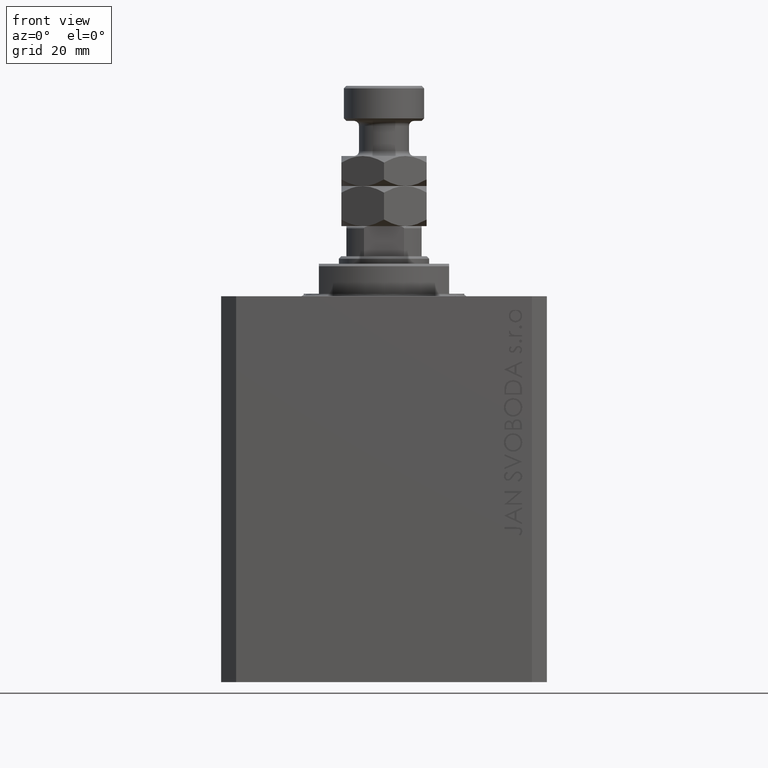
[diagram: clean part render]
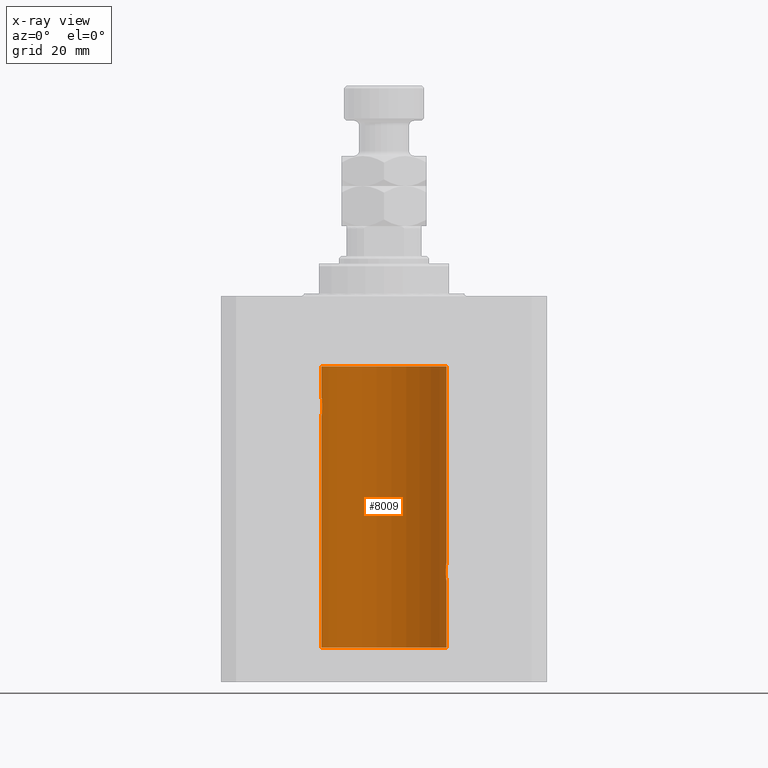
[diagram: x-ray — body ghosted, one internal face saturated and labeled with its STEP entity id]
A machine part, front view, then the same camera in x-ray: the body is ghosted and one INTERNAL B-rep face — a face not visible from any outside direction — is saturated and labeled: STEP entity #8009.
In plain terms, the highlighted cylindrical surface (partial cylindrical patch) has radius 12.5 mm, axis along (0, 0, 1).
Its self-contained STEP definition (entity closure, byte-faithful):
#68 = DIRECTION ( 'NONE',  ( 0.000000000000000000, 0.000000000000000000, 1.000000000000000000 ) ) ;
#218 = CARTESIAN_POINT ( 'NONE',  ( -12.34922241902463114, 1.935814255713574239, -22.51937350851555308 ) ) ;
#1283 = LINE ( 'NONE', #42526, #47000 ) ;
#1491 = DIRECTION ( 'NONE',  ( -0.000000000000000000, -0.000000000000000000, 1.000000000000000000 ) ) ;
#1696 = EDGE_CURVE ( 'NONE', #48586, #10156, #4246, .T. ) ;
#1958 = B_SPLINE_CURVE_WITH_KNOTS ( 'NONE', 3,
 ( #37038, #48152, #33816, #3193, #18979, #22696, #18255, #26158, #34059, #33085, #40735, #33324, #18505, #48879, #10598, #218, #7379, #41227, #14307, #6895, #10840, #21717, #48641, #11329, #21966, #45165, #48398, #25922, #15037, #44193 ),
 .UNSPECIFIED., .F., .F.,
 ( 4, 2, 2, 2, 2, 2, 2, 2, 2, 2, 2, 2, 2, 2, 4 ),
 ( 1.814683826656258666E-20, 0.0003914362731607577369, 0.0007828725463215154739, 0.001174308819482273265, 0.001565745092643030948, 0.002348617638964546530, 0.003131490185286061895, 0.003522926458446825216, 0.003914362731607588103, 0.004305799004768351423, 0.004697235277929114744, 0.005088671551089878065, 0.005480107824250641385, 0.005871544097411404706, 0.006262980370572168026 ),
 .UNSPECIFIED. ) ;
#2061 = CARTESIAN_POINT ( 'NONE',  ( 12.50000000000000000, 0.000000000000000000, -70.09999999999999432 ) ) ;
#2454 = CARTESIAN_POINT ( 'NONE',  ( 12.48989642018887203, 0.5185418732824298438, -56.93601292187604912 ) ) ;
#2460 = CARTESIAN_POINT ( 'NONE',  ( 0.000000000000000000, 0.000000000000000000, -70.09999999999999432 ) ) ;
#2586 = CARTESIAN_POINT ( 'NONE',  ( 12.50000000000000000, -7.266276684081261841E-23, -53.00000000000000000 ) ) ;
#2678 = CARTESIAN_POINT ( 'NONE',  ( 12.35520276972935250, 1.897773362058245761, -54.35528278634336630 ) ) ;
#3193 = CARTESIAN_POINT ( 'NONE',  ( -12.48990118705761532, 0.5184196815546056047, -20.06395648222637007 ) ) ;
#3538 = CARTESIAN_POINT ( 'NONE',  ( 0.000000000000000000, 0.000000000000000000, -13.99999999999999822 ) ) ;
#4246 = LINE ( 'NONE', #15609, #20880 ) ;
#4289 = ORIENTED_EDGE ( 'NONE', *, *, #23330, .F. ) ;
#5193 = FACE_OUTER_BOUND ( 'NONE', #29585, .T. ) ;
#5381 = EDGE_CURVE ( 'NONE', #10156, #6156, #36677, .T. ) ;
#6156 = VERTEX_POINT ( 'NONE', #29144 ) ;
#6783 = EDGE_CURVE ( 'NONE', #48586, #13946, #23446, .T. ) ;
#6864 = CARTESIAN_POINT ( 'NONE',  ( 12.50000000000000000, 0.1306079576516677443, -52.99999999999999289 ) ) ;
#6895 = CARTESIAN_POINT ( 'NONE',  ( -12.39864157855465088, 1.590288205413973532, -23.21980790594580313 ) ) ;
#7379 = CARTESIAN_POINT ( 'NONE',  ( -12.35517291625592051, 1.897967064543089721, -22.64415233770293412 ) ) ;
#8009 = ADVANCED_FACE ( 'NONE', ( #5193 ), #47177, .F. ) ;
#8306 = VERTEX_POINT ( 'NONE', #2586 ) ;
#9422 = DIRECTION ( 'NONE',  ( -0.000000000000000000, -0.000000000000000000, 1.000000000000000000 ) ) ;
#9511 = DIRECTION ( 'NONE',  ( 1.000000000000000000, 0.000000000000000000, 0.000000000000000000 ) ) ;
#10156 = VERTEX_POINT ( 'NONE', #30127 ) ;
#10349 = CARTESIAN_POINT ( 'NONE',  ( 12.39869754437268767, 1.598954131913735033, -56.22932152813014284 ) ) ;
#10598 = CARTESIAN_POINT ( 'NONE',  ( -12.34109209020652465, 1.986986967296539897, -22.26269462454597914 ) ) ;
#10840 = CARTESIAN_POINT ( 'NONE',  ( -12.40913174964213184, 1.507394620545641439, -23.32102833500698225 ) ) ;
#11329 = CARTESIAN_POINT ( 'NONE',  ( -12.46009879577771606, 1.003863686549169465, -23.73470742397611843 ) ) ;
#11955 = ORIENTED_EDGE ( 'NONE', *, *, #5381, .T. ) ;
#12827 = VECTOR ( 'NONE', #17553, 1000.000000000000000 ) ;
#13605 = CARTESIAN_POINT ( 'NONE',  ( -12.50000000000000000, 1.530808498934191521E-15, -70.09999999999999432 ) ) ;
#13721 = CARTESIAN_POINT ( 'NONE',  ( -12.50000000000000000, 1.867773856434666690E-17, -20.00000000000000000 ) ) ;
#13946 = VERTEX_POINT ( 'NONE', #15765 ) ;
#14039 = CARTESIAN_POINT ( 'NONE',  ( 12.48983962833819028, 0.5199974825204922713, -53.06435160808016605 ) ) ;
#14063 = CARTESIAN_POINT ( 'NONE',  ( 12.44079900692650931, 1.220007525301745277, -56.59017579083666760 ) ) ;
#14279 = CARTESIAN_POINT ( 'NONE',  ( 12.34110728646152211, 1.986893050944461780, -54.73661347764981144 ) ) ;
#14307 = CARTESIAN_POINT ( 'NONE',  ( -12.37922086519035325, 1.734998657226764829, -23.00335814299181436 ) ) ;
#14451 = ORIENTED_EDGE ( 'NONE', *, *, #1696, .T. ) ;
#14528 = CARTESIAN_POINT ( 'NONE',  ( 12.50000000000000000, -7.266276684081261841E-23, -53.00000000000000000 ) ) ;
#15037 = CARTESIAN_POINT ( 'NONE',  ( -12.50000000000000533, 0.1306394121199390135, -24.00000000000000711 ) ) ;
#15381 = DIRECTION ( 'NONE',  ( 1.000000000000000000, 0.000000000000000000, 0.000000000000000000 ) ) ;
#15609 = CARTESIAN_POINT ( 'NONE',  ( 12.50000000000000000, 0.000000000000000000, -70.09999999999999432 ) ) ;
#15765 = CARTESIAN_POINT ( 'NONE',  ( -12.50000000000000000, 1.530808498934191521E-15, -70.09999999999999432 ) ) ;
#16315 = AXIS2_PLACEMENT_3D ( 'NONE', #17654, #43102, #9511 ) ;
#16886 = LINE ( 'NONE', #2061, #43017 ) ;
#16963 = ORIENTED_EDGE ( 'NONE', *, *, #6783, .F. ) ;
#17489 = CARTESIAN_POINT ( 'NONE',  ( -12.50000000000000000, 1.530808426276628993E-15, -23.99999999999999645 ) ) ;
#17553 = DIRECTION ( 'NONE',  ( -0.000000000000000000, -0.000000000000000000, 1.000000000000000000 ) ) ;
#17654 = CARTESIAN_POINT ( 'NONE',  ( 0.000000000000000000, 0.000000000000000000, -70.09999999999999432 ) ) ;
#17740 = CARTESIAN_POINT ( 'NONE',  ( 12.40916530024876963, 1.507117913375724649, -53.67865955049006033 ) ) ;
#17811 = AXIS2_PLACEMENT_3D ( 'NONE', #3538, #68, #15381 ) ;
#18011 = CARTESIAN_POINT ( 'NONE',  ( 12.34779119491631150, 1.947363444907014518, -55.52502775168252214 ) ) ;
#18255 = CARTESIAN_POINT ( 'NONE',  ( -12.46021263690096958, 1.002494658017156981, -20.26446744561863156 ) ) ;
#18505 = CARTESIAN_POINT ( 'NONE',  ( -12.33897869807161385, 1.999901172190678089, -21.73788193668374547 ) ) ;
#18979 = CARTESIAN_POINT ( 'NONE',  ( -12.48390768591463207, 0.6455696738844916016, -20.10252270298193977 ) ) ;
#19859 = VERTEX_POINT ( 'NONE', #28494 ) ;
#20290 = CARTESIAN_POINT ( 'NONE',  ( 12.50000000000000000, 0.000000000000000000, -70.09999999999999432 ) ) ;
#20880 = VECTOR ( 'NONE', #26737, 1000.000000000000000 ) ;
#20985 = CARTESIAN_POINT ( 'NONE',  ( 12.50000000000000000, -3.070791583031755813E-15, -57.00000000000000000 ) ) ;
#21197 = CARTESIAN_POINT ( 'NONE',  ( 12.43037348241797879, 1.320834183883846435, -53.49243837704294435 ) ) ;
#21466 = CARTESIAN_POINT ( 'NONE',  ( 12.49789833780794268, 0.2625555164371063399, -56.98698170822144959 ) ) ;
#21689 = CARTESIAN_POINT ( 'NONE',  ( 12.37925647381943506, 1.734744884174225898, -53.99620732598648942 ) ) ;
#21717 = CARTESIAN_POINT ( 'NONE',  ( -12.43034574091277911, 1.321095788880539024, -23.50733550364322255 ) ) ;
#21723 = VERTEX_POINT ( 'NONE', #13721 ) ;
#21966 = CARTESIAN_POINT ( 'NONE',  ( -12.46909283808506430, 0.8868029758979402155, -23.79742491916155345 ) ) ;
#22696 = CARTESIAN_POINT ( 'NONE',  ( -12.46903010196599304, 0.8876934327478135378, -20.20300788371381984 ) ) ;
#22901 = EDGE_CURVE ( 'NONE', #8306, #19859, #16886, .T. ) ;
#23177 = EDGE_CURVE ( 'NONE', #19859, #32128, #38335, .T. ) ;
#23330 = EDGE_CURVE ( 'NONE', #21723, #32128, #1283, .T. ) ;
#23446 = CIRCLE ( 'NONE', #16315, 12.50000000000000000 ) ;
#24332 = CARTESIAN_POINT ( 'NONE',  ( -12.50000000000000000, 1.530808498934191521E-15, -13.99999999999999822 ) ) ;
#24543 = DIRECTION ( 'NONE',  ( -0.000000000000000000, -0.000000000000000000, 1.000000000000000000 ) ) ;
#24942 = CARTESIAN_POINT ( 'NONE',  ( 12.37760587642916477, 1.747868572747724114, -56.00639653169000098 ) ) ;
#24946 = DIRECTION ( 'NONE',  ( 1.000000000000000000, 0.000000000000000000, 0.000000000000000000 ) ) ;
#25426 = CARTESIAN_POINT ( 'NONE',  ( 12.46019522898365395, 1.002712894177340885, -56.73540896027601121 ) ) ;
#25895 = CARTESIAN_POINT ( 'NONE',  ( 12.33896267925302226, 2.000000000000254463, -54.86934705949917657 ) ) ;
#25922 = CARTESIAN_POINT ( 'NONE',  ( -12.49788564268284041, 0.2633501011236127343, -23.98690384766255335 ) ) ;
#26158 = CARTESIAN_POINT ( 'NONE',  ( -12.44082361696003503, 1.219754986802281449, -20.40963319990594016 ) ) ;
#26737 = DIRECTION ( 'NONE',  ( -0.000000000000000000, -0.000000000000000000, 1.000000000000000000 ) ) ;
#28161 = CARTESIAN_POINT ( 'NONE',  ( 12.33896267925302581, 2.000000000000254463, -55.00000000000000000 ) ) ;
#28240 = EDGE_CURVE ( 'NONE', #21723, #40295, #1958, .T. ) ;
#28494 = CARTESIAN_POINT ( 'NONE',  ( 12.50000000000000000, 0.000000000000000000, -13.99999999999999822 ) ) ;
#28645 = CARTESIAN_POINT ( 'NONE',  ( 12.48390005916862933, 0.6457215011736597843, -56.89742771554266199 ) ) ;
#28846 = ORIENTED_EDGE ( 'NONE', *, *, #23177, .T. ) ;
#28870 = CARTESIAN_POINT ( 'NONE',  ( 12.46011632531799407, 1.003644408234889429, -53.26516799687669135 ) ) ;
#28926 = LINE ( 'NONE', #13605, #12827 ) ;
#29137 = CARTESIAN_POINT ( 'NONE',  ( 12.43016561391612029, 1.322713721413891319, -56.50578877836698410 ) ) ;
#29144 = CARTESIAN_POINT ( 'NONE',  ( 12.33896267925302581, 2.000000000000254463, -55.00000000000000000 ) ) ;
#29353 = CARTESIAN_POINT ( 'NONE',  ( 12.46910683544638232, 0.8866026273585057016, -53.20247863689694157 ) ) ;
#29585 = EDGE_LOOP ( 'NONE', ( #43804, #16963, #14451, #11955, #47031, #47807, #28846, #4289, #34527 ) ) ;
#30127 = CARTESIAN_POINT ( 'NONE',  ( 12.50000000000000000, -3.070791583031755813E-15, -57.00000000000000000 ) ) ;
#32128 = VERTEX_POINT ( 'NONE', #24332 ) ;
#33083 = CARTESIAN_POINT ( 'NONE',  ( 12.33896267925302581, 2.000000000000254907, -55.26143174220785426 ) ) ;
#33085 = CARTESIAN_POINT ( 'NONE',  ( -12.39873273758732175, 1.598680238462371062, -20.77033506126851137 ) ) ;
#33324 = CARTESIAN_POINT ( 'NONE',  ( -12.34781876294798053, 1.947190906025043633, -21.47436412829509678 ) ) ;
#33816 = CARTESIAN_POINT ( 'NONE',  ( -12.49789934882883458, 0.2624928479599910047, -20.01301208516349917 ) ) ;
#34059 = CARTESIAN_POINT ( 'NONE',  ( -12.43019346654084956, 1.322451657002078340, -20.49398366327208620 ) ) ;
#34527 = ORIENTED_EDGE ( 'NONE', *, *, #28240, .T. ) ;
#36543 = CARTESIAN_POINT ( 'NONE',  ( 12.46901623405144299, 0.8878913781257963267, -56.79689651717551158 ) ) ;
#36677 = B_SPLINE_CURVE_WITH_KNOTS ( 'NONE', 3,
 ( #20985, #47905, #21466, #2454, #28645, #36543, #25426, #14063, #29137, #10349, #24942, #18011, #33083, #28161 ),
 .UNSPECIFIED., .F., .F.,
 ( 4, 2, 2, 2, 2, 2, 4 ),
 ( 4.122900576430715099E-18, 0.0003915305205218091544, 0.0007830610410436140804, 0.001174591561565418952, 0.001566122082087223824, 0.002349183123130847879, 0.003132244164174471934 ),
 .UNSPECIFIED. ) ;
#36765 = CARTESIAN_POINT ( 'NONE',  ( 12.44079117518645461, 1.220047488436375227, -53.40989676335082237 ) ) ;
#36952 = EDGE_CURVE ( 'NONE', #6156, #8306, #42166, .T. ) ;
#37038 = CARTESIAN_POINT ( 'NONE',  ( -12.50000000000000000, 1.867773856434666690E-17, -20.00000000000000000 ) ) ;
#37254 = CARTESIAN_POINT ( 'NONE',  ( 12.49788668346400122, 0.2632864803365719264, -53.01308975838332316 ) ) ;
#38335 = CIRCLE ( 'NONE', #17811, 12.50000000000000000 ) ;
#39977 = CARTESIAN_POINT ( 'NONE',  ( 12.37021546997940113, 1.797317011867410219, -54.11295119741077286 ) ) ;
#40295 = VERTEX_POINT ( 'NONE', #17489 ) ;
#40465 = CARTESIAN_POINT ( 'NONE',  ( 12.48395395845270528, 0.6446573166014708534, -53.10222124213520090 ) ) ;
#40573 = AXIS2_PLACEMENT_3D ( 'NONE', #2460, #1491, #24946 ) ;
#40709 = CARTESIAN_POINT ( 'NONE',  ( 12.39867611624532806, 1.590019252152835794, -53.77984495929610631 ) ) ;
#40735 = CARTESIAN_POINT ( 'NONE',  ( -12.37764291807175354, 1.747608771958140794, -20.99316879552500481 ) ) ;
#41227 = CARTESIAN_POINT ( 'NONE',  ( -12.37018026341338839, 1.797558627508998086, -22.88656313533016373 ) ) ;
#42166 = B_SPLINE_CURVE_WITH_KNOTS ( 'NONE', 3,
 ( #48126, #25895, #14279, #43670, #2678, #39977, #21689, #40709, #17740, #21197, #36765, #28870, #29353, #40465, #14039, #37254, #6864, #14528 ),
 .UNSPECIFIED., .F., .F.,
 ( 4, 2, 2, 2, 2, 2, 2, 2, 4 ),
 ( 0.003132244164174471934, 0.003523586189974247697, 0.003914928215774023459, 0.004306270241573798355, 0.004697612267373574985, 0.005088954293173349880, 0.005480296318973125642, 0.005871638344772901405, 0.006262980370572677168 ),
 .UNSPECIFIED. ) ;
#42526 = CARTESIAN_POINT ( 'NONE',  ( -12.50000000000000000, 1.530808498934191521E-15, -70.09999999999999432 ) ) ;
#43017 = VECTOR ( 'NONE', #24543, 1000.000000000000000 ) ;
#43102 = DIRECTION ( 'NONE',  ( 0.000000000000000000, 0.000000000000000000, 1.000000000000000000 ) ) ;
#43670 = CARTESIAN_POINT ( 'NONE',  ( 12.34924836377099844, 1.935649219704940194, -54.48002062127162759 ) ) ;
#43804 = ORIENTED_EDGE ( 'NONE', *, *, #48719, .F. ) ;
#44193 = CARTESIAN_POINT ( 'NONE',  ( -12.50000000000000000, 1.530808426276628993E-15, -23.99999999999999645 ) ) ;
#45165 = CARTESIAN_POINT ( 'NONE',  ( -12.48394649977302073, 0.6448065707253024526, -23.89773031393659153 ) ) ;
#47000 = VECTOR ( 'NONE', #9422, 1000.000000000000000 ) ;
#47031 = ORIENTED_EDGE ( 'NONE', *, *, #36952, .T. ) ;
#47177 = CYLINDRICAL_SURFACE ( 'NONE', #40573, 12.50000000000000000 ) ;
#47807 = ORIENTED_EDGE ( 'NONE', *, *, #22901, .T. ) ;
#47905 = CARTESIAN_POINT ( 'NONE',  ( 12.50000000000000178, 0.1324055009716459952, -56.99999999999999289 ) ) ;
#48126 = CARTESIAN_POINT ( 'NONE',  ( 12.33896267925302581, 2.000000000000254463, -55.00000000000000000 ) ) ;
#48152 = CARTESIAN_POINT ( 'NONE',  ( -12.50000000000000000, 0.1323736289504353625, -20.00000000000000000 ) ) ;
#48398 = CARTESIAN_POINT ( 'NONE',  ( -12.48983485452574982, 0.5201193324741355539, -23.93561774521849372 ) ) ;
#48586 = VERTEX_POINT ( 'NONE', #20290 ) ;
#48641 = CARTESIAN_POINT ( 'NONE',  ( -12.44076681548080288, 1.220297236145718944, -23.58991408680628155 ) ) ;
#48719 = EDGE_CURVE ( 'NONE', #13946, #40295, #28926, .T. ) ;
#48879 = CARTESIAN_POINT ( 'NONE',  ( -12.33895470450623044, 2.000049200055401766, -22.12992629360264729 ) ) ;